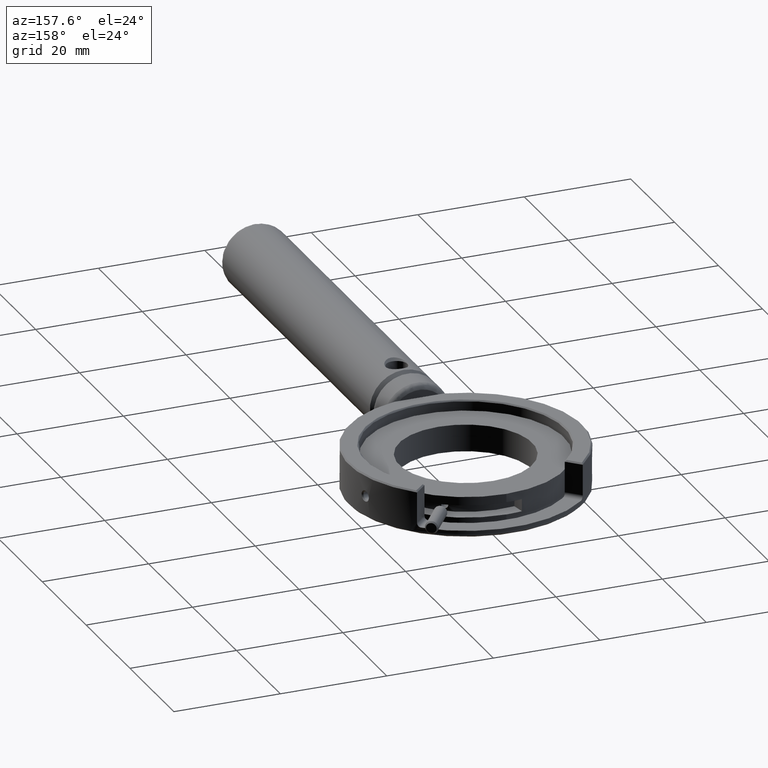
[diagram: clean part render]
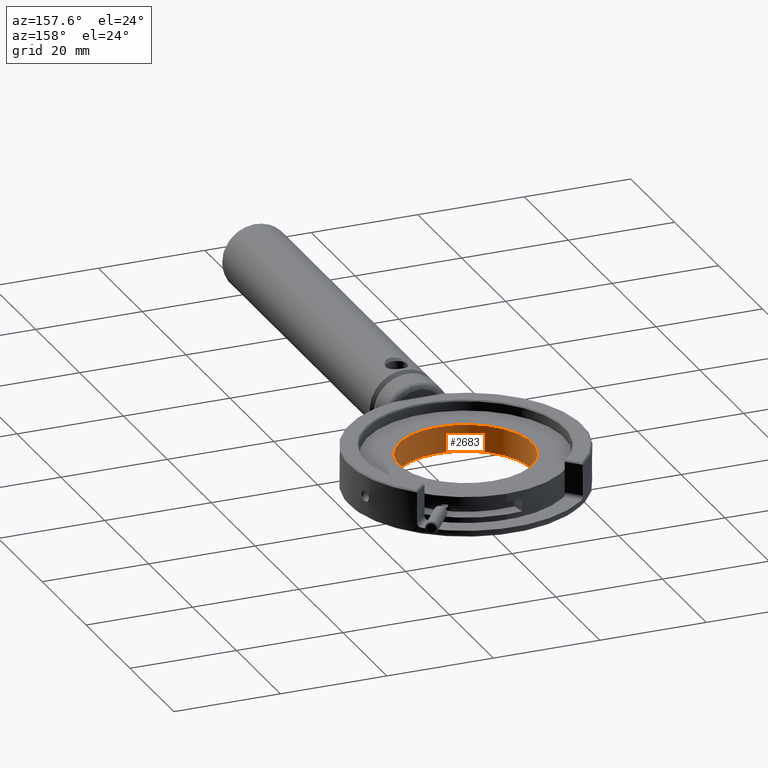
[diagram: same view with one face highlighted and labeled with its STEP entity id]
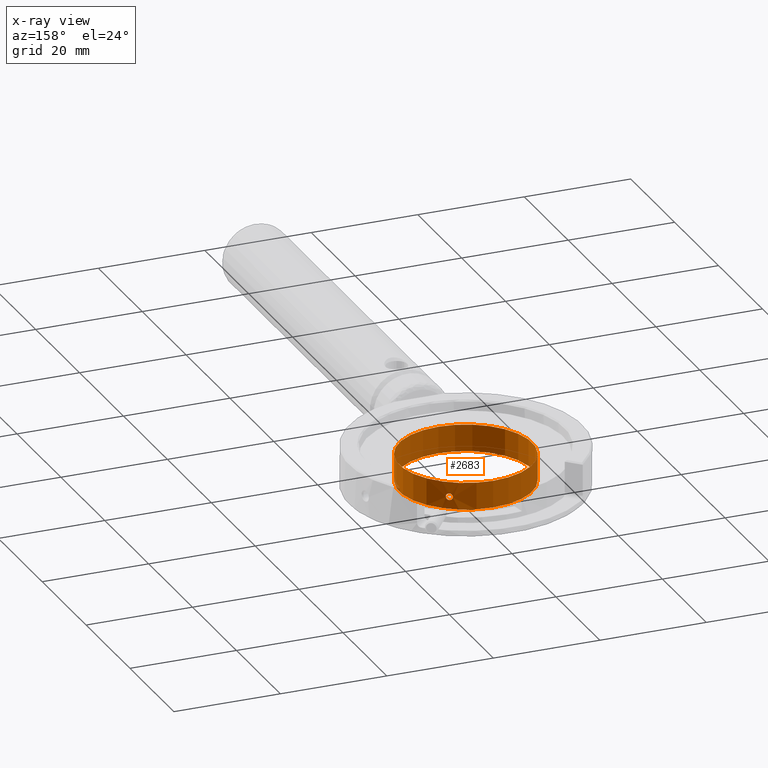
[diagram: x-ray of the same camera — body ghosted, the highlighted face saturated]
A machine part, auxiliary view. The second image highlights one B-rep face of the part: STEP entity #2683.
The next image is the same camera in x-ray: the body ghosted, the highlighted face saturated — about 0% of this face is hidden behind the body in this view.
In plain terms, the highlighted cylindrical surface (bore or boss wall) has radius 12.5 mm, axis along (-0, -0, -1).
Its self-contained STEP definition (entity closure, byte-faithful):
#44 = EDGE_LOOP ( 'NONE', ( #3235 ) ) ;
#108 = DIRECTION ( 'NONE',  ( 1.065302022606571958E-15, 1.774820270857325025E-15, 1.000000000000000000 ) ) ;
#126 = CARTESIAN_POINT ( 'NONE',  ( 6.859482734694919870, 69.47355241897932387, -1.004369999869993091 ) ) ;
#144 = CARTESIAN_POINT ( 'NONE',  ( 6.897903934647710678, 69.44853756094499886, -1.073249403251894440 ) ) ;
#159 = CARTESIAN_POINT ( 'NONE',  ( 0.03631047345559035300, 59.00000000000000000, -3.000000000000000000 ) ) ;
#161 = CARTESIAN_POINT ( 'NONE',  ( 6.806938172352698047, 69.50759632563891444, -0.8530233450953867980 ) ) ;
#256 = DIRECTION ( 'NONE',  ( 0.000000000000000000, 1.000000000000000000, -1.769417945496343828E-15 ) ) ;
#427 = DIRECTION ( 'NONE',  ( 0.000000000000000000, 1.000000000000000000, -1.769417945496343828E-15 ) ) ;
#448 = CARTESIAN_POINT ( 'NONE',  ( 6.994830571723412049, 69.38423444927744299, -0.1904198847116078952 ) ) ;
#482 = CARTESIAN_POINT ( 'NONE',  ( 0.03631047345559575840, 59.00000000000000000, 2.060000000000000053 ) ) ;
#487 = CARTESIAN_POINT ( 'NONE',  ( 0.03631047345559575840, 59.00000000000000000, 2.060000000000000053 ) ) ;
#567 = AXIS2_PLACEMENT_3D ( 'NONE', #482, #2144, #3226 ) ;
#760 = EDGE_CURVE ( 'NONE', #1610, #1610, #1044, .T. ) ;
#934 = CARTESIAN_POINT ( 'NONE',  ( 7.445041024955755482, 69.06916054252108950, -0.06500000000005429213 ) ) ;
#990 = CARTESIAN_POINT ( 'NONE',  ( 7.176394608693537513, 69.26140735930968617, -1.315000000000095204 ) ) ;
#1044 = CIRCLE ( 'NONE', #1839, 12.49999999999999645 ) ;
#1046 = CYLINDRICAL_SURFACE ( 'NONE', #567, 12.49999999999999645 ) ;
#1117 = CARTESIAN_POINT ( 'NONE',  ( 0.03631047345559035300, 71.50000000000000000, -3.000000000000022204 ) ) ;
#1143 = VERTEX_POINT ( 'NONE', #2224 ) ;
#1148 = CARTESIAN_POINT ( 'NONE',  ( 7.564694719971297054, 68.97893582585720651, -1.236004144955980433 ) ) ;
#1164 = CARTESIAN_POINT ( 'NONE',  ( 7.443291779230064797, 69.06937721587935641, -1.298738995257830764 ) ) ;
#1175 = ORIENTED_EDGE ( 'NONE', *, *, #760, .F. ) ;
#1217 = CARTESIAN_POINT ( 'NONE',  ( 6.850636520712692246, 69.47989831744102673, -0.3633601566166216323 ) ) ;
#1260 = FACE_OUTER_BOUND ( 'NONE', #1642, .T. ) ;
#1453 = CARTESIAN_POINT ( 'NONE',  ( 7.619882333847695755, 68.93693941321390639, -1.189580354619182101 ) ) ;
#1470 = CARTESIAN_POINT ( 'NONE',  ( 7.748094863508170782, 68.83765020233917653, -0.3756298054774596662 ) ) ;
#1546 = CARTESIAN_POINT ( 'NONE',  ( 6.793448974743268032, 69.51622932836998814, -0.5265225572276234223 ) ) ;
#1610 = VERTEX_POINT ( 'NONE', #2685 ) ;
#1640 = CIRCLE ( 'NONE', #1812, 12.49999999999999645 ) ;
#1642 = EDGE_LOOP ( 'NONE', ( #1175 ) ) ;
#1699 = CARTESIAN_POINT ( 'NONE',  ( 7.809795851785321652, 68.78891848394641784, -0.8534775508678358324 ) ) ;
#1812 = AXIS2_PLACEMENT_3D ( 'NONE', #159, #108, #427 ) ;
#1839 = AXIS2_PLACEMENT_3D ( 'NONE', #487, #3491, #256 ) ;
#1996 = EDGE_CURVE ( 'NONE', #1143, #1143, #3215, .T. ) ;
#2055 = CARTESIAN_POINT ( 'NONE',  ( 7.043715147127118215, 69.35180601132086053, -1.248371544141899880 ) ) ;
#2144 = DIRECTION ( 'NONE',  ( -1.065302022606571958E-15, -1.774820270857325025E-15, -1.000000000000000000 ) ) ;
#2216 = VERTEX_POINT ( 'NONE', #1117 ) ;
#2224 = CARTESIAN_POINT ( 'NONE',  ( 7.310717861350149782, 69.16528391905239914, -1.314999999999999947 ) ) ;
#2230 = CARTESIAN_POINT ( 'NONE',  ( 7.756955698081375417, 68.83132471083756343, -1.016640052635439773 ) ) ;
#2283 = CARTESIAN_POINT ( 'NONE',  ( 7.243556279547015642, 69.21334560731820318, -0.06500000000000549782 ) ) ;
#2393 = FACE_OUTER_BOUND ( 'NONE', #44, .T. ) ;
#2495 = CARTESIAN_POINT ( 'NONE',  ( 7.377879487678458581, 69.11722219892376984, -1.314999999999952651 ) ) ;
#2550 = CARTESIAN_POINT ( 'NONE',  ( 7.177163760102976298, 69.25982182623145889, -0.08126115630131035272 ) ) ;
#2581 = CARTESIAN_POINT ( 'NONE',  ( 7.712020828988929821, 68.86594509085597338, -0.3067503777078441907 ) ) ;
#2620 = CARTESIAN_POINT ( 'NONE',  ( 6.793308146005751169, 69.51631981523314607, -0.7710978752651513890 ) ) ;
#2683 = ADVANCED_FACE ( 'NONE', ( #1260, #3435, #2393 ), #1046, .F. ) ;
#2685 = CARTESIAN_POINT ( 'NONE',  ( 0.03631047345559575840, 71.50000000000000000, 2.059999999999978293 ) ) ;
#2762 = CARTESIAN_POINT ( 'NONE',  ( 7.310717861350152447, 69.16528391905241335, -1.315000000000000169 ) ) ;
#2779 = CARTESIAN_POINT ( 'NONE',  ( 7.809926939100040322, 68.78881438419254835, -0.6089020706868284449 ) ) ;
#2849 = CARTESIAN_POINT ( 'NONE',  ( 7.052387677764688334, 69.34554929574125026, -0.1439960778007335629 ) ) ;
#2926 = EDGE_CURVE ( 'NONE', #2216, #2216, #1640, .T. ) ;
#3082 = CARTESIAN_POINT ( 'NONE',  ( 7.573415081278304761, 68.97274596698643734, -0.1316281973452798626 ) ) ;
#3089 = EDGE_LOOP ( 'NONE', ( #3275 ) ) ;
#3118 = CARTESIAN_POINT ( 'NONE',  ( 7.310717861350152447, 69.16528391905241335, -1.315000000000000169 ) ) ;
#3215 = B_SPLINE_CURVE_WITH_KNOTS ( 'NONE', 3,
 ( #2762, #2495, #1164, #1148, #1453, #2230, #1699, #2779, #3372, #1470, #2581, #3082, #934, #2283, #2550, #2849, #448, #1217, #1546, #2620, #161, #126, #144, #2055, #990, #3118 ),
 .UNSPECIFIED., .T., .F.,
 ( 4, 2, 2, 2, 2, 2, 2, 2, 2, 2, 2, 2, 4 ),
 ( 0.000000000000000000, 0.0002442414457621078575, 0.0004884828915242157149, 0.0009769657830484136489, 0.001221207228810512616, 0.001465448674572611583, 0.001953931566096810818, 0.002198173011858911736, 0.002442414457621012655, 0.002930897349145231839, 0.003175138794907341432, 0.003419380240669451457, 0.003907863132193670208 ),
 .UNSPECIFIED. ) ;
#3226 = DIRECTION ( 'NONE',  ( 0.000000000000000000, 1.000000000000000000, -1.769417945496343828E-15 ) ) ;
#3235 = ORIENTED_EDGE ( 'NONE', *, *, #2926, .F. ) ;
#3275 = ORIENTED_EDGE ( 'NONE', *, *, #1996, .F. ) ;
#3372 = CARTESIAN_POINT ( 'NONE',  ( 7.797272120069843382, 68.79890066803545778, -0.5269765485467879929 ) ) ;
#3435 = FACE_BOUND ( 'NONE', #3089, .T. ) ;
#3491 = DIRECTION ( 'NONE',  ( -1.065302022606571958E-15, -1.774820270857325025E-15, -1.000000000000000000 ) ) ;